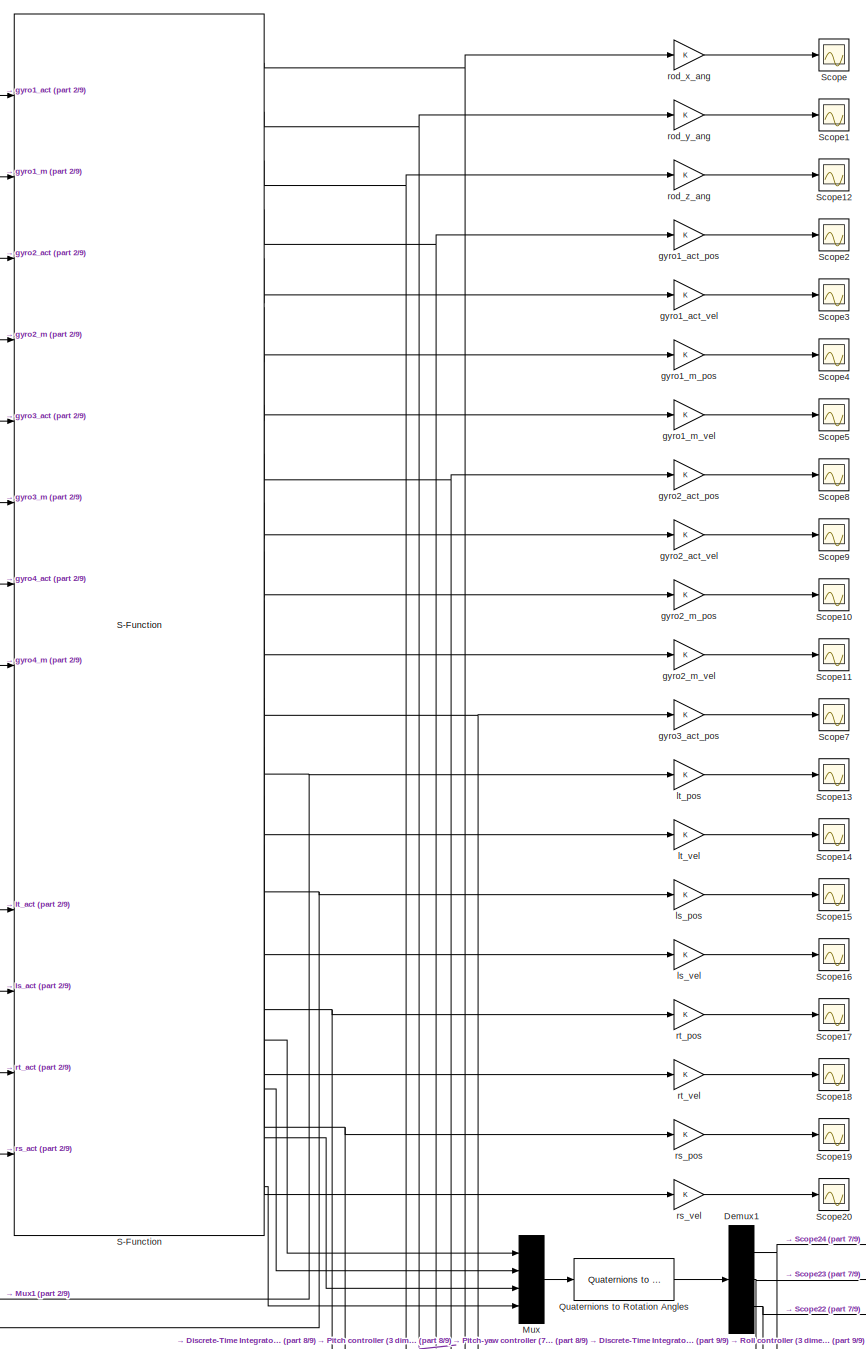
[diagram: root canvas - part 1/9, top right region]
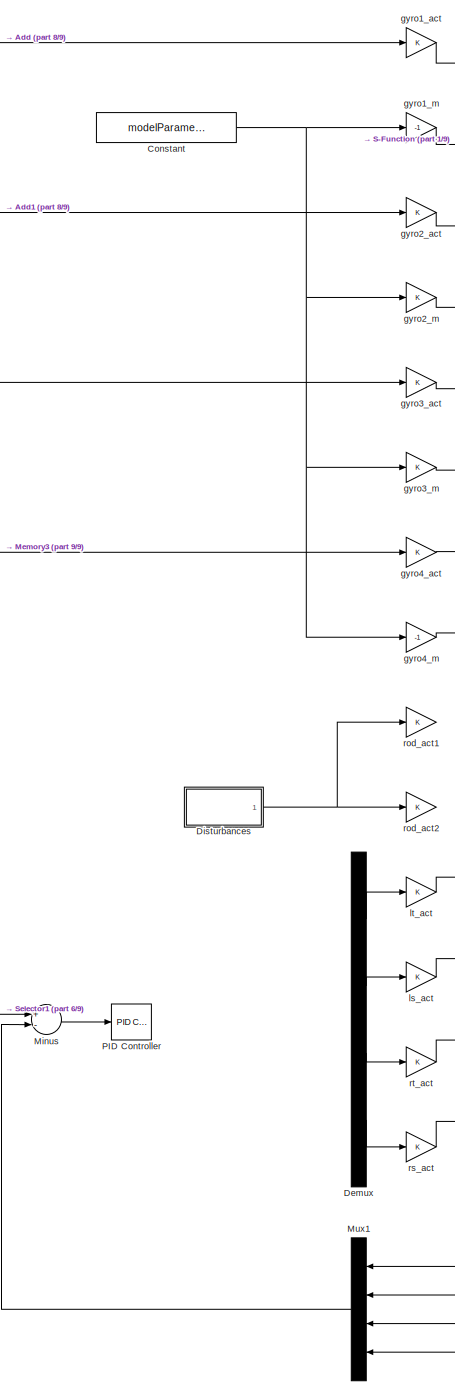
[diagram: root canvas - part 2/9, top right region]
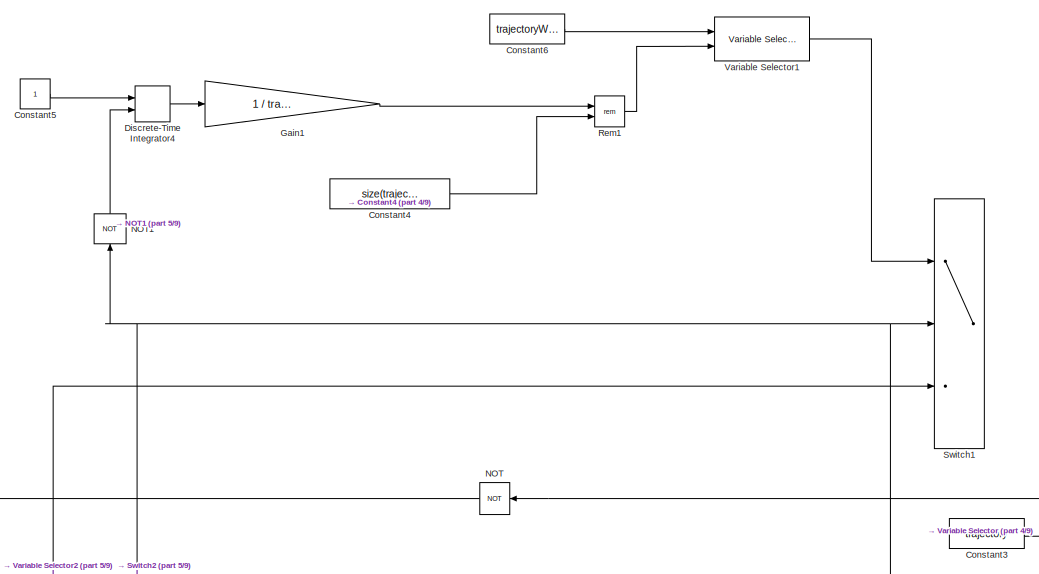
[diagram: root canvas - part 3/9, top left region]
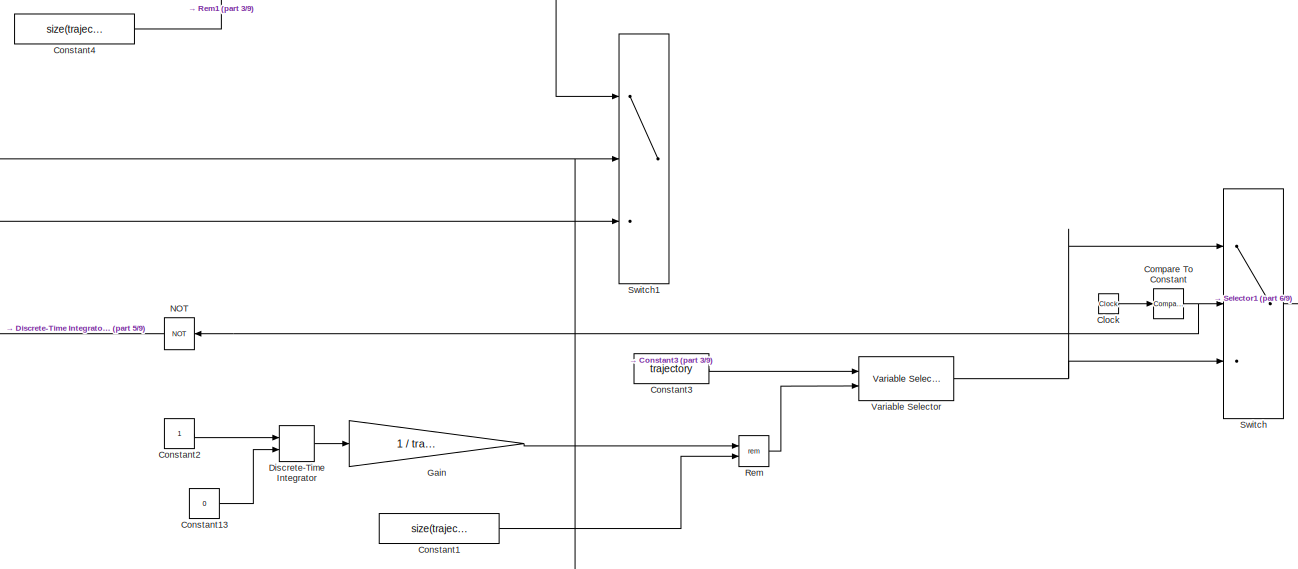
[diagram: root canvas - part 4/9, central region]
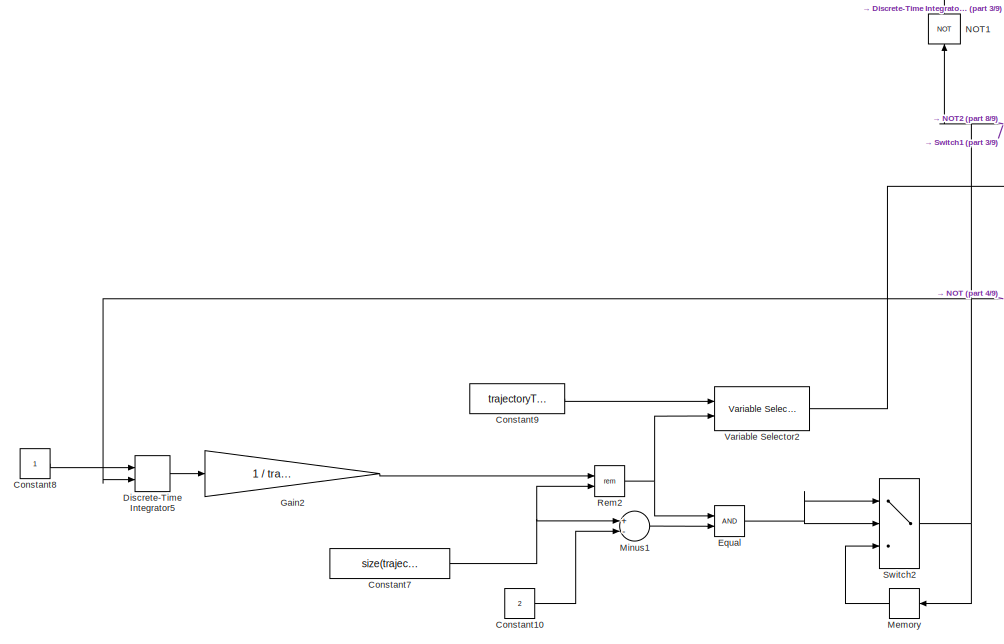
[diagram: root canvas - part 5/9, middle left region]
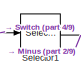
[diagram: root canvas - part 6/9, central region]
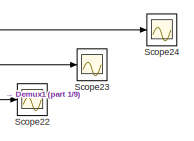
[diagram: root canvas - part 7/9, middle right region]
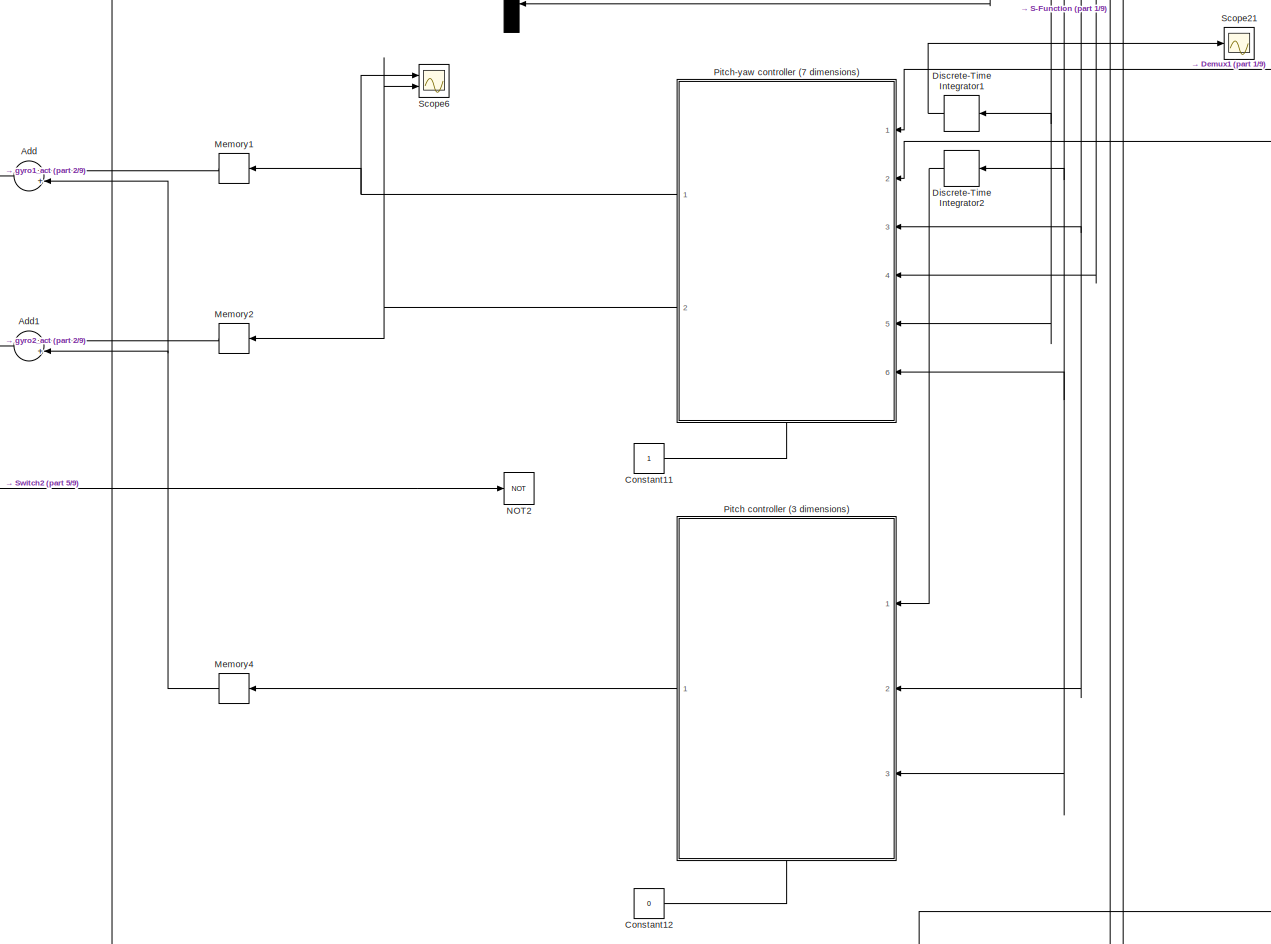
[diagram: root canvas - part 8/9, bottom right region]
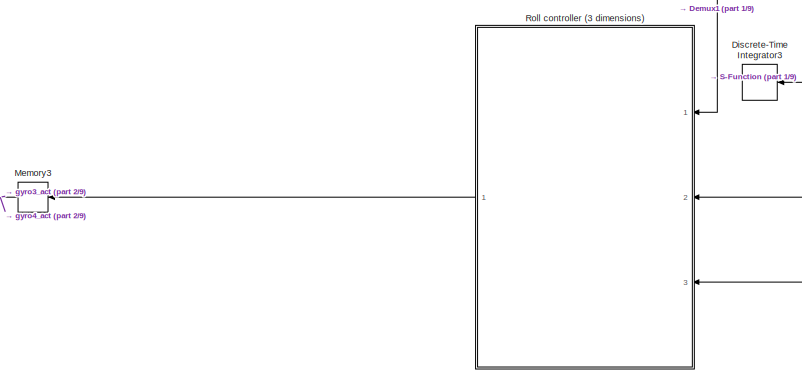
[diagram: root canvas - part 9/9, bottom right region]
MODEL slx_36c080c9a291
KIND model
CONFIG AbsTol = auto
CONFIG EnableMultiTasking = off
CONFIG FixedStep = timeStep
CONFIG MaxStep = auto
CONFIG MinStep = auto
CONFIG RelTol = 1e-3
CONFIG SampleTimeConstraint = Unconstrained
CONFIG Solver = FixedStepDiscrete
CONFIG SolverName = FixedStepDiscrete
CONFIG StartTime = 0.0
CONFIG StopTime = inf
BLOCK [Sum] Add
  InputSameDT = off
  OutDataTypeStr = Inherit: Inherit via internal rule
  Ports = [2, 1]
  SaturateOnIntegerOverflow = off
BLOCK [Sum] Add1
  InputSameDT = off
  OutDataTypeStr = Inherit: Inherit via internal rule
  Ports = [2, 1]
  SaturateOnIntegerOverflow = off
BLOCK [Clock] Clock
BLOCK [Reference] Compare To Constant  REF=simulink/Logic and Bit
Operations/Compare
To Constant
  Ports = [1, 1]
  SourceBlock = simulink/Logic and Bit\nOperations/Compare\nTo Constant
  SourceProductBaseCode = SL
  SourceProductName = Simulink
  SourceType = Compare To Constant
BLOCK [Constant] Constant
  Value = modelParameters.gamD
BLOCK [Constant] Constant1
  Value = size(trajectory, 2)
BLOCK [Constant] Constant10
  Value = 2
BLOCK [Constant] Constant11
BLOCK [Constant] Constant12
  Value = 0
BLOCK [Constant] Constant13
  Value = 0
BLOCK [Constant] Constant2
  SampleTime = trajectoryTimeStep
BLOCK [Constant] Constant3
  Value = trajectory
BLOCK [Constant] Constant4
  Value = size(trajectoryWalk, 2)
BLOCK [Constant] Constant5
  SampleTime = trajectoryTimeStep
BLOCK [Constant] Constant6
  Value = trajectoryWalk
BLOCK [Constant] Constant7
  Value = size(trajectoryToWalk, 2)
BLOCK [Constant] Constant8
  SampleTime = trajectoryTimeStep
BLOCK [Constant] Constant9
  Value = trajectoryToWalk
BLOCK [Demux] Demux
  DisplayOption = bar
  Ports = [1, 4]
BLOCK [Demux] Demux1
  DisplayOption = bar
  Outputs = 3
  Ports = [1, 3]
BLOCK [DiscreteIntegrator] Discrete-Time Integrator
  ExternalReset = level
  ICPrevOutput = DiscIntNeverNeededParam
  ICPrevScaledInput = DiscIntNeverNeededParam
  InitialConditionSetting = Auto
  Ports = [2, 1]
  SampleTime = -1
BLOCK [DiscreteIntegrator] Discrete-Time Integrator1
  ICPrevOutput = DiscIntNeverNeededParam
  ICPrevScaledInput = DiscIntNeverNeededParam
  InitialConditionSetting = Auto
  Ports = [1, 1]
  SampleTime = -1
BLOCK [DiscreteIntegrator] Discrete-Time Integrator2
  ICPrevOutput = DiscIntNeverNeededParam
  ICPrevScaledInput = DiscIntNeverNeededParam
  InitialConditionSetting = Auto
  Ports = [1, 1]
  SampleTime = -1
BLOCK [DiscreteIntegrator] Discrete-Time Integrator3
  ICPrevOutput = DiscIntNeverNeededParam
  ICPrevScaledInput = DiscIntNeverNeededParam
  InitialConditionSetting = Auto
  Ports = [1, 1]
  SampleTime = -1
BLOCK [DiscreteIntegrator] Discrete-Time Integrator4
  ExternalReset = level
  ICPrevOutput = DiscIntNeverNeededParam
  ICPrevScaledInput = DiscIntNeverNeededParam
  InitialConditionSetting = Auto
  Ports = [2, 1]
  SampleTime = -1
BLOCK [DiscreteIntegrator] Discrete-Time Integrator5
  ExternalReset = level
  ICPrevOutput = DiscIntNeverNeededParam
  ICPrevScaledInput = DiscIntNeverNeededParam
  InitialConditionSetting = Auto
  Ports = [2, 1]
  SampleTime = -1
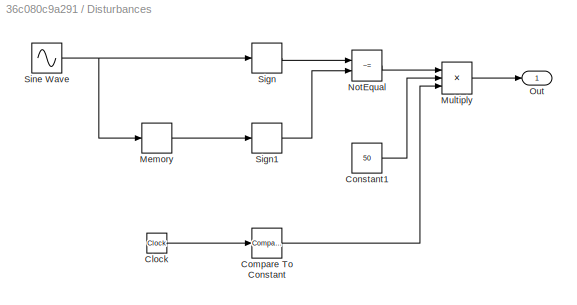
BLOCK [SubSystem] Disturbances
  Ports = [0, 1]
  RequestExecContextInheritance = off
BLOCK [Clock] Disturbances/Clock
BLOCK [Reference] Disturbances/Compare To Constant  REF=simulink/Logic and Bit
Operations/Compare
To Constant
  Ports = [1, 1]
  SourceBlock = simulink/Logic and Bit\nOperations/Compare\nTo Constant
  SourceProductBaseCode = SL
  SourceProductName = Simulink
  SourceType = Compare To Constant
BLOCK [Constant] Disturbances/Constant1
  Value = 50
BLOCK [Memory] Disturbances/Memory
BLOCK [Product] Disturbances/Multiply
  InputSameDT = off
  Inputs = 3
  OutDataTypeStr = Inherit: Inherit via internal rule
  Ports = [3, 1]
  RndMeth = Floor
  SaturateOnIntegerOverflow = off
BLOCK [RelationalOperator] Disturbances/NotEqual
  InputSameDT = off
  Operator = ~=
  OutDataTypeStr = boolean
  Ports = [2, 1]
  RndMeth = Simplest
BLOCK [Outport] Disturbances/Out
  IconDisplay = Port number
BLOCK [Signum] Disturbances/Sign
BLOCK [Signum] Disturbances/Sign1
BLOCK [Sin] Disturbances/Sine Wave
  Frequency = 2
  Phase = -0.5
  Ports = [0, 1]
  SampleTime = 0
BLOCK [RelationalOperator] Equal
  InputSameDT = off
  OutDataTypeStr = boolean
  Ports = [2, 1]
  RndMeth = Simplest
BLOCK [Gain] Gain
  Gain = 1 / trajectoryTimeStep
  OutDataTypeStr = Inherit: Inherit via internal rule
  ParamDataTypeStr = Inherit: Inherit via internal rule
  SaturateOnIntegerOverflow = off
BLOCK [Gain] Gain1
  Gain = 1 / trajectoryTimeStep
  OutDataTypeStr = Inherit: Inherit via internal rule
  ParamDataTypeStr = Inherit: Inherit via internal rule
  SaturateOnIntegerOverflow = off
BLOCK [Gain] Gain2
  Gain = 1 / trajectoryTimeStep
  OutDataTypeStr = Inherit: Inherit via internal rule
  ParamDataTypeStr = Inherit: Inherit via internal rule
  SaturateOnIntegerOverflow = off
BLOCK [Memory] Memory
BLOCK [Memory] Memory1
BLOCK [Memory] Memory2
BLOCK [Memory] Memory3
BLOCK [Memory] Memory4
BLOCK [Sum] Minus
  InputSameDT = off
  Inputs = +-
  OutDataTypeStr = Inherit: Inherit via internal rule
  Ports = [2, 1]
  SaturateOnIntegerOverflow = off
BLOCK [Sum] Minus1
  InputSameDT = off
  Inputs = +-
  OutDataTypeStr = Inherit: Inherit via internal rule
  Ports = [2, 1]
  SaturateOnIntegerOverflow = off
BLOCK [Mux] Mux
  DisplayOption = bar
  Ports = [4, 1]
BLOCK [Mux] Mux1
  DisplayOption = bar
  Ports = [4, 1]
BLOCK [Logic] NOT
  AllPortsSameDT = off
  IconShape = distinctive
  Operator = NOT
  OutDataTypeStr = boolean
  Ports = [1, 1]
BLOCK [Logic] NOT1
  AllPortsSameDT = off
  IconShape = distinctive
  Operator = NOT
  OutDataTypeStr = boolean
  Ports = [1, 1]
BLOCK [Logic] NOT2
  AllPortsSameDT = off
  IconShape = distinctive
  Operator = NOT
  OutDataTypeStr = boolean
  Ports = [1, 1]
BLOCK [Reference] PID Controller  REF=simulink/Continuous/PID Controller
  Ports = [1, 1]
  SourceBlock = simulink/Continuous/PID Controller
  SourceProductBaseCode = SL
  SourceProductName = Simulink
  SourceType = PID 1dof
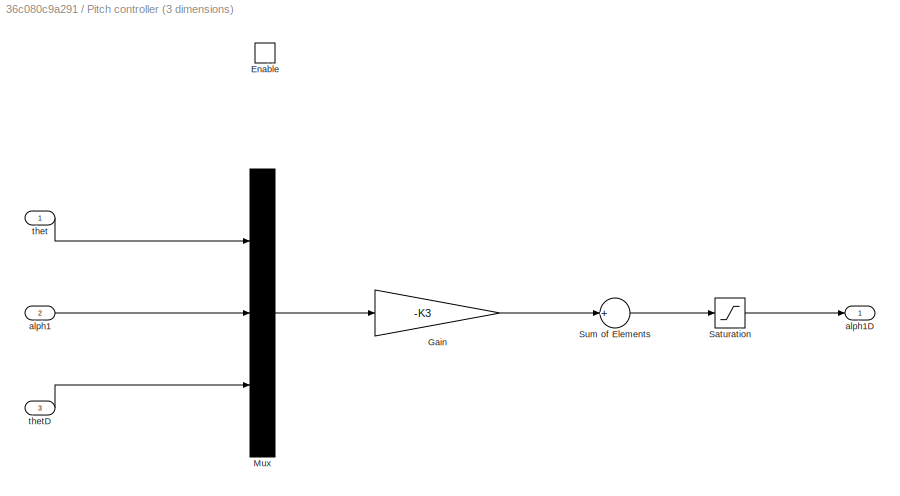
BLOCK [SubSystem] Pitch controller (3 dimensions)
  Ports = [3, 1, 1]
  RequestExecContextInheritance = off
BLOCK [EnablePort] Pitch controller (3 dimensions)/Enable
  Ports = []
  StatesWhenEnabling = reset
BLOCK [Gain] Pitch controller (3 dimensions)/Gain
  Gain = -K3
  OutDataTypeStr = Inherit: Inherit via internal rule
  ParamDataTypeStr = Inherit: Inherit via internal rule
  SaturateOnIntegerOverflow = off
BLOCK [Mux] Pitch controller (3 dimensions)/Mux
  DisplayOption = bar
  Inputs = 3
  Ports = [3, 1]
BLOCK [Saturate] Pitch controller (3 dimensions)/Saturation
  InputPortMap = u0
  LowerLimit = -3
  Ports = [1, 1]
  UpperLimit = 3
BLOCK [Sum] Pitch controller (3 dimensions)/Sum of Elements
  InputSameDT = off
  Inputs = +
  OutDataTypeStr = Inherit: Inherit via internal rule
  Ports = [1, 1]
  SaturateOnIntegerOverflow = off
BLOCK [Inport] Pitch controller (3 dimensions)/alph1
  IconDisplay = Port number
  Port = 2
BLOCK [Outport] Pitch controller (3 dimensions)/alph1D
  IconDisplay = Port number
BLOCK [Inport] Pitch controller (3 dimensions)/thet
  IconDisplay = Port number
BLOCK [Inport] Pitch controller (3 dimensions)/thetD
  IconDisplay = Port number
  Port = 3
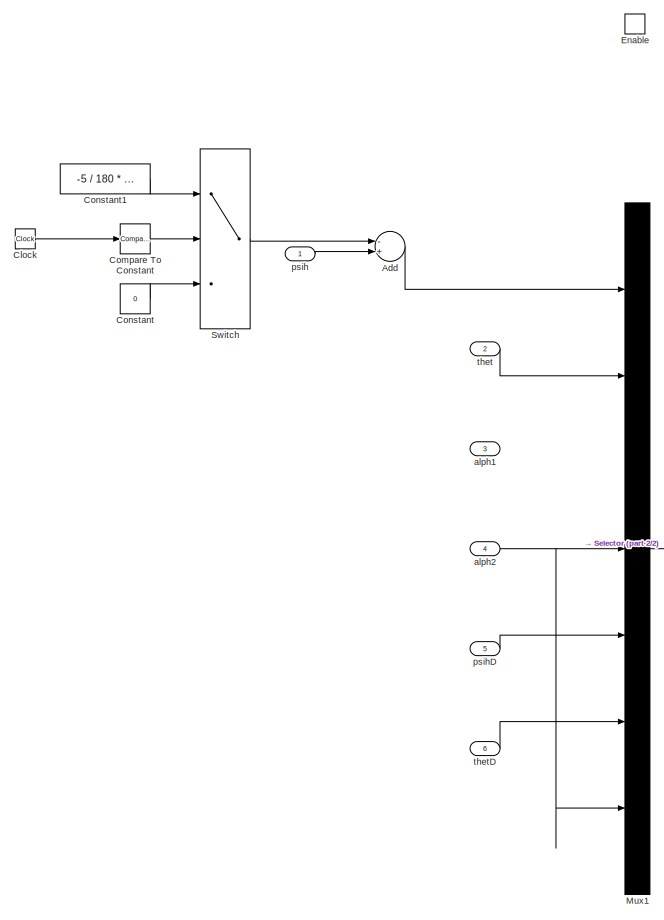
[diagram: Pitch-yaw controller (7 dimensions) - part 1/2, left side, full height]
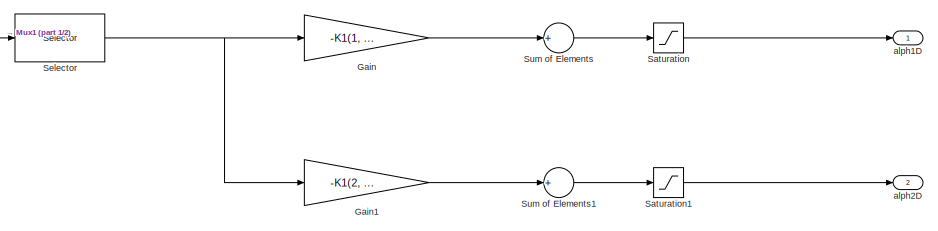
[diagram: Pitch-yaw controller (7 dimensions) - part 2/2, bottom right region]
BLOCK [SubSystem] Pitch-yaw controller (7 dimensions)
  Ports = [6, 2, 1]
  RequestExecContextInheritance = off
BLOCK [Sum] Pitch-yaw controller (7 dimensions)/Add
  InputSameDT = off
  Inputs = -+
  OutDataTypeStr = Inherit: Inherit via internal rule
  Ports = [2, 1]
  SaturateOnIntegerOverflow = off
BLOCK [Clock] Pitch-yaw controller (7 dimensions)/Clock
BLOCK [Reference] Pitch-yaw controller (7 dimensions)/Compare To Constant  REF=simulink/Logic and Bit
Operations/Compare
To Constant
  Ports = [1, 1]
  SourceBlock = simulink/Logic and Bit\nOperations/Compare\nTo Constant
  SourceProductBaseCode = SL
  SourceProductName = Simulink
  SourceType = Compare To Constant
BLOCK [Constant] Pitch-yaw controller (7 dimensions)/Constant
  Value = 0
BLOCK [Constant] Pitch-yaw controller (7 dimensions)/Constant1
  Value = -5 / 180 * pi
BLOCK [EnablePort] Pitch-yaw controller (7 dimensions)/Enable
  Ports = []
  StatesWhenEnabling = reset
BLOCK [Gain] Pitch-yaw controller (7 dimensions)/Gain
  Gain = -K1(1, :)
  OutDataTypeStr = Inherit: Inherit via internal rule
  ParamDataTypeStr = Inherit: Inherit via internal rule
  SaturateOnIntegerOverflow = off
BLOCK [Gain] Pitch-yaw controller (7 dimensions)/Gain1
  Gain = -K1(2, :)
  OutDataTypeStr = Inherit: Inherit via internal rule
  ParamDataTypeStr = Inherit: Inherit via internal rule
  SaturateOnIntegerOverflow = off
BLOCK [Mux] Pitch-yaw controller (7 dimensions)/Mux1
  DisplayOption = bar
  Inputs = 7
  Ports = [7, 1]
BLOCK [Saturate] Pitch-yaw controller (7 dimensions)/Saturation
  InputPortMap = u0
  LowerLimit = -3
  Ports = [1, 1]
  UpperLimit = 3
BLOCK [Saturate] Pitch-yaw controller (7 dimensions)/Saturation1
  InputPortMap = u0
  LowerLimit = -3
  Ports = [1, 1]
  UpperLimit = 3
BLOCK [Selector] Pitch-yaw controller (7 dimensions)/Selector
  IndexOptions = Index vector (dialog),Index vector (dialog)
  Indices = 1,[1 2 4 5 6 7]
  InputPortWidth = 7
  NumberOfDimensions = 2
  OutputSizes = 1,1
  Ports = [1, 1]
BLOCK [Sum] Pitch-yaw controller (7 dimensions)/Sum of Elements
  InputSameDT = off
  Inputs = +
  OutDataTypeStr = Inherit: Inherit via internal rule
  Ports = [1, 1]
  SaturateOnIntegerOverflow = off
BLOCK [Sum] Pitch-yaw controller (7 dimensions)/Sum of Elements1
  InputSameDT = off
  Inputs = +
  OutDataTypeStr = Inherit: Inherit via internal rule
  Ports = [1, 1]
  SaturateOnIntegerOverflow = off
BLOCK [Switch] Pitch-yaw controller (7 dimensions)/Switch
  Criteria = u2 > Threshold
  InputSameDT = off
  SaturateOnIntegerOverflow = off
BLOCK [Inport] Pitch-yaw controller (7 dimensions)/alph1
  IconDisplay = Port number
  Port = 3
BLOCK [Outport] Pitch-yaw controller (7 dimensions)/alph1D
  IconDisplay = Port number
BLOCK [Inport] Pitch-yaw controller (7 dimensions)/alph2
  IconDisplay = Port number
  Port = 4
BLOCK [Outport] Pitch-yaw controller (7 dimensions)/alph2D
  IconDisplay = Port number
  Port = 2
BLOCK [Inport] Pitch-yaw controller (7 dimensions)/psih
  IconDisplay = Port number
BLOCK [Inport] Pitch-yaw controller (7 dimensions)/psihD
  IconDisplay = Port number
  Port = 5
BLOCK [Inport] Pitch-yaw controller (7 dimensions)/thet
  IconDisplay = Port number
  Port = 2
BLOCK [Inport] Pitch-yaw controller (7 dimensions)/thetD
  IconDisplay = Port number
  Port = 6
BLOCK [Reference] Quaternions to Rotation Angles  REF=sharedtransform/Quaternions to Rotation Angles
  AttributesFormatString = Rotation Order: %<rotationOrder>
  Ports = [1, 1]
  SourceBlock = sharedtransform/Quaternions to Rotation Angles
  SourceProductBaseCode = AE
  SourceProductName = Aerospace Blockset
  SourceType = Quat2Ang
BLOCK [Math] Rem
  Operator = rem
  Ports = [2, 1]
BLOCK [Math] Rem1
  Operator = rem
  Ports = [2, 1]
BLOCK [Math] Rem2
  Operator = rem
  Ports = [2, 1]
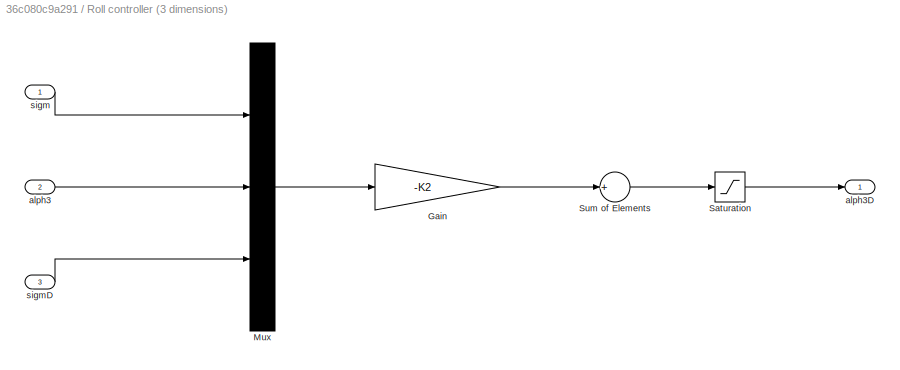
BLOCK [SubSystem] Roll controller (3 dimensions)
  Ports = [3, 1]
  RequestExecContextInheritance = off
BLOCK [Gain] Roll controller (3 dimensions)/Gain
  Gain = -K2
  OutDataTypeStr = Inherit: Inherit via internal rule
  ParamDataTypeStr = Inherit: Inherit via internal rule
  SaturateOnIntegerOverflow = off
BLOCK [Mux] Roll controller (3 dimensions)/Mux
  DisplayOption = bar
  Inputs = 3
  Ports = [3, 1]
BLOCK [Saturate] Roll controller (3 dimensions)/Saturation
  InputPortMap = u0
  LowerLimit = -3
  Ports = [1, 1]
  UpperLimit = 3
BLOCK [Sum] Roll controller (3 dimensions)/Sum of Elements
  InputSameDT = off
  Inputs = +
  OutDataTypeStr = Inherit: Inherit via internal rule
  Ports = [1, 1]
  SaturateOnIntegerOverflow = off
BLOCK [Inport] Roll controller (3 dimensions)/alph3
  IconDisplay = Port number
  Port = 2
BLOCK [Outport] Roll controller (3 dimensions)/alph3D
  IconDisplay = Port number
BLOCK [Inport] Roll controller (3 dimensions)/sigm
  IconDisplay = Port number
BLOCK [Inport] Roll controller (3 dimensions)/sigmD
  IconDisplay = Port number
  Port = 3
BLOCK [S-Function] S-Function
  EnableBusSupport = off
  FunctionName = MuJoCo
  Ports = [14, 24]
  SFcnIsStateOwnerBlock = off
  SFunctionDeploymentMode = off
BLOCK [Scope] Scope
  Floating = off
  NumInputPorts = 1
  Ports = [1]
  ScopeSpecificationString = Simulink.scopes.TimeScopeBlockCfg('CurrentConfiguration', extmgr.ConfigurationSet(extmgr.Configuration('Core','General UI',true),extmgr.Configuration('Core','Source UI',true),extmgr.Configuration('Sources','WiredSimulink',true),extmgr.Configuration('Visuals','Time Domain',true,'SerializedDisplays',{struct('MinYLimReal','-0.05455','MaxYLimReal','0.04875','YLabelReal','','MinYLimMag','0.00000','MaxY...<+1669ch>
BLOCK [Scope] Scope1
  Floating = off
  NumInputPorts = 1
  Ports = [1]
  ScopeSpecificationString = Simulink.scopes.TimeScopeBlockCfg('CurrentConfiguration', extmgr.ConfigurationSet(extmgr.Configuration('Core','General UI',true),extmgr.Configuration('Core','Source UI',true),extmgr.Configuration('Sources','WiredSimulink',true,'DataLoggingVariableName','ScopeData1'),extmgr.Configuration('Visuals','Time Domain',true,'SerializedDisplays',{struct('MinYLimReal','-7.0362','MaxYLimReal','1.09617','YLabe...<+1417ch>
BLOCK [Scope] Scope10
  Floating = off
  NumInputPorts = 1
  Ports = [1]
  ScopeSpecificationString = Simulink.scopes.TimeScopeBlockCfg('CurrentConfiguration', extmgr.ConfigurationSet(extmgr.Configuration('Core','General UI',true),extmgr.Configuration('Core','Source UI',true),extmgr.Configuration('Sources','WiredSimulink',true,'DataLoggingVariableName','ScopeData1'),extmgr.Configuration('Visuals','Time Domain',true,'SerializedDisplays',{struct('MinYLimReal','-640.0995','MaxYLimReal','5760.89553','...<+1410ch>
BLOCK [Scope] Scope11
  Floating = off
  NumInputPorts = 1
  Ports = [1]
  ScopeSpecificationString = Simulink.scopes.TimeScopeBlockCfg('CurrentConfiguration', extmgr.ConfigurationSet(extmgr.Configuration('Core','General UI',true),extmgr.Configuration('Core','Source UI',true),extmgr.Configuration('Sources','WiredSimulink',true,'DataLoggingVariableName','ScopeData2'),extmgr.Configuration('Visuals','Time Domain',true,'SerializedDisplays',{struct('MinYLimReal','-131.02873','MaxYLimReal','1179.25854',...<+1388ch>
BLOCK [Scope] Scope12
  Floating = off
  NumInputPorts = 1
  Ports = [1]
  ScopeSpecificationString = Simulink.scopes.TimeScopeBlockCfg('CurrentConfiguration', extmgr.ConfigurationSet(extmgr.Configuration('Core','General UI',true),extmgr.Configuration('Core','Source UI',true),extmgr.Configuration('Sources','WiredSimulink',true,'DataLoggingVariableName','ScopeData5'),extmgr.Configuration('Visuals','Time Domain',true,'SerializedDisplays',{struct('MinYLimReal','-0.05405','MaxYLimReal','0.47776','YLab...<+1762ch>
BLOCK [Scope] Scope13
  Floating = off
  NumInputPorts = 1
  Ports = [1]
  ScopeSpecificationString = Simulink.scopes.TimeScopeBlockCfg('CurrentConfiguration', extmgr.ConfigurationSet(extmgr.Configuration('Core','General UI',true),extmgr.Configuration('Core','Source UI',true),extmgr.Configuration('Sources','WiredSimulink',true,'DataLoggingVariableName','ScopeData2'),extmgr.Configuration('Visuals','Time Domain',true,'SerializedDisplays',{struct('MinYLimReal','-131.02873','MaxYLimReal','1179.25854',...<+1388ch>
BLOCK [Scope] Scope14
  Floating = off
  NumInputPorts = 1
  Ports = [1]
  ScopeSpecificationString = Simulink.scopes.TimeScopeBlockCfg('CurrentConfiguration', extmgr.ConfigurationSet(extmgr.Configuration('Core','General UI',true),extmgr.Configuration('Core','Source UI',true),extmgr.Configuration('Sources','WiredSimulink',true,'DataLoggingVariableName','ScopeData3'),extmgr.Configuration('Visuals','Time Domain',true,'SerializedDisplays',{struct('MinYLimReal','-131.02873','MaxYLimReal','1179.25854',...<+1388ch>
BLOCK [Scope] Scope15
  Floating = off
  NumInputPorts = 1
  Ports = [1]
  ScopeSpecificationString = Simulink.scopes.TimeScopeBlockCfg('CurrentConfiguration', extmgr.ConfigurationSet(extmgr.Configuration('Core','General UI',true),extmgr.Configuration('Core','Source UI',true),extmgr.Configuration('Sources','WiredSimulink',true,'DataLoggingVariableName','ScopeData4'),extmgr.Configuration('Visuals','Time Domain',true,'SerializedDisplays',{struct('MinYLimReal','-131.02873','MaxYLimReal','1179.25854',...<+1388ch>
BLOCK [Scope] Scope16
  Floating = off
  NumInputPorts = 1
  Ports = [1]
  ScopeSpecificationString = Simulink.scopes.TimeScopeBlockCfg('CurrentConfiguration', extmgr.ConfigurationSet(extmgr.Configuration('Core','General UI',true),extmgr.Configuration('Core','Source UI',true),extmgr.Configuration('Sources','WiredSimulink',true,'DataLoggingVariableName','ScopeData5'),extmgr.Configuration('Visuals','Time Domain',true,'SerializedDisplays',{struct('MinYLimReal','-131.02873','MaxYLimReal','1179.25854',...<+1388ch>
BLOCK [Scope] Scope17
  Floating = off
  NumInputPorts = 1
  Ports = [1]
  ScopeSpecificationString = Simulink.scopes.TimeScopeBlockCfg('CurrentConfiguration', extmgr.ConfigurationSet(extmgr.Configuration('Core','General UI',true),extmgr.Configuration('Core','Source UI',true),extmgr.Configuration('Sources','WiredSimulink',true,'DataLoggingVariableName','ScopeData6'),extmgr.Configuration('Visuals','Time Domain',true,'SerializedDisplays',{struct('MinYLimReal','-131.02873','MaxYLimReal','1179.25854',...<+1388ch>
BLOCK [Scope] Scope18
  Floating = off
  NumInputPorts = 1
  Ports = [1]
  ScopeSpecificationString = Simulink.scopes.TimeScopeBlockCfg('CurrentConfiguration', extmgr.ConfigurationSet(extmgr.Configuration('Core','General UI',true),extmgr.Configuration('Core','Source UI',true),extmgr.Configuration('Sources','WiredSimulink',true,'DataLoggingVariableName','ScopeData7'),extmgr.Configuration('Visuals','Time Domain',true,'SerializedDisplays',{struct('MinYLimReal','-131.02873','MaxYLimReal','1179.25854',...<+1388ch>
BLOCK [Scope] Scope19
  Floating = off
  NumInputPorts = 1
  Ports = [1]
  ScopeSpecificationString = Simulink.scopes.TimeScopeBlockCfg('CurrentConfiguration', extmgr.ConfigurationSet(extmgr.Configuration('Core','General UI',true),extmgr.Configuration('Core','Source UI',true),extmgr.Configuration('Sources','WiredSimulink',true,'DataLoggingVariableName','ScopeData8'),extmgr.Configuration('Visuals','Time Domain',true,'SerializedDisplays',{struct('MinYLimReal','-131.02873','MaxYLimReal','1179.25854',...<+1388ch>
BLOCK [Scope] Scope2
  Floating = off
  NumInputPorts = 1
  Ports = [1]
  ScopeSpecificationString = Simulink.scopes.TimeScopeBlockCfg('CurrentConfiguration', extmgr.ConfigurationSet(extmgr.Configuration('Core','General UI',true),extmgr.Configuration('Core','Source UI',true),extmgr.Configuration('Sources','WiredSimulink',true,'DataLoggingVariableName','ScopeData2'),extmgr.Configuration('Visuals','Time Domain',true,'SerializedDisplays',{struct('MinYLimReal','-0.01837','MaxYLimReal','0.03145','YLab...<+1425ch>
BLOCK [Scope] Scope20
  Floating = off
  NumInputPorts = 1
  Ports = [1]
  ScopeSpecificationString = Simulink.scopes.TimeScopeBlockCfg('CurrentConfiguration', extmgr.ConfigurationSet(extmgr.Configuration('Core','General UI',true),extmgr.Configuration('Core','Source UI',true),extmgr.Configuration('Sources','WiredSimulink',true,'DataLoggingVariableName','ScopeData9'),extmgr.Configuration('Visuals','Time Domain',true,'SerializedDisplays',{struct('MinYLimReal','-131.02873','MaxYLimReal','1179.25854',...<+1388ch>
BLOCK [Scope] Scope21
  Floating = off
  NumInputPorts = 1
  Ports = [1]
  ScopeSpecificationString = Simulink.scopes.TimeScopeBlockCfg('CurrentConfiguration', extmgr.ConfigurationSet(extmgr.Configuration('Core','General UI',true),extmgr.Configuration('Core','Source UI',true),extmgr.Configuration('Sources','WiredSimulink',true,'DataLoggingVariableName','ScopeData1'),extmgr.Configuration('Visuals','Time Domain',true,'SerializedDisplays',{struct('MinYLimReal','-0.0000000000005','MaxYLimReal','0.0000...<+1520ch>
BLOCK [Scope] Scope22
  Floating = off
  NumInputPorts = 1
  Ports = [1]
  ScopeSpecificationString = Simulink.scopes.TimeScopeBlockCfg('CurrentConfiguration', extmgr.ConfigurationSet(extmgr.Configuration('Core','General UI',true),extmgr.Configuration('Core','Source UI',true),extmgr.Configuration('Sources','WiredSimulink',true,'DataLoggingVariableName','ScopeData1'),extmgr.Configuration('Visuals','Time Domain',true,'SerializedDisplays',{struct('MinYLimReal','-0.01982','MaxYLimReal','0.14602','YLab...<+1392ch>
BLOCK [Scope] Scope23
  Floating = off
  NumInputPorts = 1
  Ports = [1]
  ScopeSpecificationString = Simulink.scopes.TimeScopeBlockCfg('CurrentConfiguration', extmgr.ConfigurationSet(extmgr.Configuration('Core','General UI',true),extmgr.Configuration('Core','Source UI',true),extmgr.Configuration('Sources','WiredSimulink',true,'DataLoggingVariableName','ScopeData2'),extmgr.Configuration('Visuals','Time Domain',true),extmgr.Configuration('Tools','Plot Navigation',true),extmgr.Configuration('Tools',...<+40ch>
BLOCK [Scope] Scope24
  Floating = off
  NumInputPorts = 1
  Ports = [1]
  ScopeSpecificationString = Simulink.scopes.TimeScopeBlockCfg('CurrentConfiguration', extmgr.ConfigurationSet(extmgr.Configuration('Core','General UI',true),extmgr.Configuration('Core','Source UI',true),extmgr.Configuration('Sources','WiredSimulink',true,'DataLoggingVariableName','ScopeData3'),extmgr.Configuration('Visuals','Time Domain',true),extmgr.Configuration('Tools','Plot Navigation',true),extmgr.Configuration('Tools',...<+40ch>
BLOCK [Scope] Scope3
  Floating = off
  NumInputPorts = 1
  Ports = [1]
  ScopeSpecificationString = Simulink.scopes.TimeScopeBlockCfg('CurrentConfiguration', extmgr.ConfigurationSet(extmgr.Configuration('Core','General UI',true),extmgr.Configuration('Core','Source UI',true),extmgr.Configuration('Sources','WiredSimulink',true,'DataLoggingVariableName','ScopeData3'),extmgr.Configuration('Visuals','Time Domain',true,'SerializedDisplays',{struct('MinYLimReal','-0.83058','MaxYLimReal','1.49325','YLab...<+1425ch>
BLOCK [Scope] Scope4
  Floating = off
  NumInputPorts = 1
  Ports = [1]
  ScopeSpecificationString = Simulink.scopes.TimeScopeBlockCfg('CurrentConfiguration', extmgr.ConfigurationSet(extmgr.Configuration('Core','General UI',true),extmgr.Configuration('Core','Source UI',true),extmgr.Configuration('Sources','WiredSimulink',true,'DataLoggingVariableName','ScopeData4'),extmgr.Configuration('Visuals','Time Domain',true,'SerializedDisplays',{struct('MinYLimReal','-11778.61634','MaxYLimReal','1308.73515...<+1423ch>
BLOCK [Scope] Scope5
  Floating = off
  NumInputPorts = 1
  Ports = [1]
  ScopeSpecificationString = Simulink.scopes.TimeScopeBlockCfg('CurrentConfiguration', extmgr.ConfigurationSet(extmgr.Configuration('Core','General UI',true),extmgr.Configuration('Core','Source UI',true),extmgr.Configuration('Sources','WiredSimulink',true,'DataLoggingVariableName','ScopeData5'),extmgr.Configuration('Visuals','Time Domain',true,'SerializedDisplays',{struct('MinYLimReal','-1179.25819','MaxYLimReal','131.02869',...<+1390ch>
BLOCK [Scope] Scope6
  Floating = off
  NumInputPorts = 2
  Ports = [2]
  ScopeSpecificationString = Simulink.scopes.TimeScopeBlockCfg('CurrentConfiguration', extmgr.ConfigurationSet(extmgr.Configuration('Core','General UI',true),extmgr.Configuration('Core','Source UI',true),extmgr.Configuration('Sources','WiredSimulink',true,'DataLoggingVariableName','ScopeData1'),extmgr.Configuration('Visuals','Time Domain',true,'SerializedDisplays',{struct('MinYLimReal','0.000014','MaxYLimReal','0.000024','YLa...<+1514ch>
BLOCK [Scope] Scope7
  Floating = off
  NumInputPorts = 1
  Ports = [1]
  ScopeSpecificationString = Simulink.scopes.TimeScopeBlockCfg('CurrentConfiguration', extmgr.ConfigurationSet(extmgr.Configuration('Core','General UI',true),extmgr.Configuration('Core','Source UI',true),extmgr.Configuration('Sources','WiredSimulink',true,'DataLoggingVariableName','ScopeData1'),extmgr.Configuration('Visuals','Time Domain',true,'SerializedDisplays',{struct('MinYLimReal','-131.02873','MaxYLimReal','1179.25854',...<+1388ch>
BLOCK [Scope] Scope8
  Floating = off
  NumInputPorts = 1
  Ports = [1]
  ScopeSpecificationString = Simulink.scopes.TimeScopeBlockCfg('CurrentConfiguration', extmgr.ConfigurationSet(extmgr.Configuration('Core','General UI',true),extmgr.Configuration('Core','Source UI',true),extmgr.Configuration('Sources','WiredSimulink',true,'DataLoggingVariableName','ScopeData3'),extmgr.Configuration('Visuals','Time Domain',true,'SerializedDisplays',{struct('MinYLimReal','-0.02112','MaxYLimReal','0.03675','YLab...<+1425ch>
BLOCK [Scope] Scope9
  Floating = off
  NumInputPorts = 1
  Ports = [1]
  ScopeSpecificationString = Simulink.scopes.TimeScopeBlockCfg('CurrentConfiguration', extmgr.ConfigurationSet(extmgr.Configuration('Core','General UI',true),extmgr.Configuration('Core','Source UI',true),extmgr.Configuration('Sources','WiredSimulink',true,'DataLoggingVariableName','ScopeData4'),extmgr.Configuration('Visuals','Time Domain',true,'SerializedDisplays',{struct('MinYLimReal','-3.50607','MaxYLimReal','0.41731','YLab...<+1401ch>
BLOCK [Selector] Selector1
  IndexOptions = Index vector (dialog)
  Indices = [3 4 1 2]
  InputPortWidth = 4
  OutputSizes = 1
  Ports = [1, 1]
BLOCK [Switch] Switch
  Criteria = u2 > Threshold
  InputSameDT = off
  SaturateOnIntegerOverflow = off
BLOCK [Switch] Switch1
  Criteria = u2 > Threshold
  InputSameDT = off
  SaturateOnIntegerOverflow = off
BLOCK [Switch] Switch2
  Criteria = u2 > Threshold
  InputSameDT = off
  SaturateOnIntegerOverflow = off
BLOCK [Reference] Variable Selector  REF=dspindex/Variable
Selector
  Ports = [2, 1]
  SourceBlock = dspindex/Variable\nSelector
  SourceProductBaseCode = DS
  SourceProductName = DSP System Toolbox
  SourceType = Variable Selector
BLOCK [Reference] Variable Selector1  REF=dspindex/Variable
Selector
  Ports = [2, 1]
  SourceBlock = dspindex/Variable\nSelector
  SourceProductBaseCode = DS
  SourceProductName = DSP System Toolbox
  SourceType = Variable Selector
BLOCK [Reference] Variable Selector2  REF=dspindex/Variable
Selector
  Ports = [2, 1]
  SourceBlock = dspindex/Variable\nSelector
  SourceProductBaseCode = DS
  SourceProductName = DSP System Toolbox
  SourceType = Variable Selector
BLOCK [Gain] gyro1_act
  OutDataTypeStr = Inherit: Inherit via internal rule
  ParamDataTypeStr = Inherit: Inherit via internal rule
  SaturateOnIntegerOverflow = off
BLOCK [Gain] gyro1_act_pos
  OutDataTypeStr = Inherit: Inherit via internal rule
  ParamDataTypeStr = Inherit: Inherit via internal rule
  SaturateOnIntegerOverflow = off
BLOCK [Gain] gyro1_act_vel
  OutDataTypeStr = Inherit: Inherit via internal rule
  ParamDataTypeStr = Inherit: Inherit via internal rule
  SaturateOnIntegerOverflow = off
BLOCK [Gain] gyro1_m
  Gain = -1
  OutDataTypeStr = Inherit: Inherit via internal rule
  ParamDataTypeStr = Inherit: Inherit via internal rule
  SaturateOnIntegerOverflow = off
BLOCK [Gain] gyro1_m_pos
  OutDataTypeStr = Inherit: Inherit via internal rule
  ParamDataTypeStr = Inherit: Inherit via internal rule
  SaturateOnIntegerOverflow = off
BLOCK [Gain] gyro1_m_vel
  OutDataTypeStr = Inherit: Inherit via internal rule
  ParamDataTypeStr = Inherit: Inherit via internal rule
  SaturateOnIntegerOverflow = off
BLOCK [Gain] gyro2_act
  OutDataTypeStr = Inherit: Inherit via internal rule
  ParamDataTypeStr = Inherit: Inherit via internal rule
  SaturateOnIntegerOverflow = off
BLOCK [Gain] gyro2_act_pos
  OutDataTypeStr = Inherit: Inherit via internal rule
  ParamDataTypeStr = Inherit: Inherit via internal rule
  SaturateOnIntegerOverflow = off
BLOCK [Gain] gyro2_act_vel
  OutDataTypeStr = Inherit: Inherit via internal rule
  ParamDataTypeStr = Inherit: Inherit via internal rule
  SaturateOnIntegerOverflow = off
BLOCK [Gain] gyro2_m
  OutDataTypeStr = Inherit: Inherit via internal rule
  ParamDataTypeStr = Inherit: Inherit via internal rule
  SaturateOnIntegerOverflow = off
BLOCK [Gain] gyro2_m_pos
  OutDataTypeStr = Inherit: Inherit via internal rule
  ParamDataTypeStr = Inherit: Inherit via internal rule
  SaturateOnIntegerOverflow = off
BLOCK [Gain] gyro2_m_vel
  OutDataTypeStr = Inherit: Inherit via internal rule
  ParamDataTypeStr = Inherit: Inherit via internal rule
  SaturateOnIntegerOverflow = off
BLOCK [Gain] gyro3_act
  OutDataTypeStr = Inherit: Inherit via internal rule
  ParamDataTypeStr = Inherit: Inherit via internal rule
  SaturateOnIntegerOverflow = off
BLOCK [Gain] gyro3_act_pos
  OutDataTypeStr = Inherit: Inherit via internal rule
  ParamDataTypeStr = Inherit: Inherit via internal rule
  SaturateOnIntegerOverflow = off
BLOCK [Gain] gyro3_m
  OutDataTypeStr = Inherit: Inherit via internal rule
  ParamDataTypeStr = Inherit: Inherit via internal rule
  SaturateOnIntegerOverflow = off
BLOCK [Gain] gyro4_act
  OutDataTypeStr = Inherit: Inherit via internal rule
  ParamDataTypeStr = Inherit: Inherit via internal rule
  SaturateOnIntegerOverflow = off
BLOCK [Gain] gyro4_m
  Gain = -1
  OutDataTypeStr = Inherit: Inherit via internal rule
  ParamDataTypeStr = Inherit: Inherit via internal rule
  SaturateOnIntegerOverflow = off
BLOCK [Gain] ls_act
  OutDataTypeStr = Inherit: Inherit via internal rule
  ParamDataTypeStr = Inherit: Inherit via internal rule
  SaturateOnIntegerOverflow = off
BLOCK [Gain] ls_pos
  OutDataTypeStr = Inherit: Inherit via internal rule
  ParamDataTypeStr = Inherit: Inherit via internal rule
  SaturateOnIntegerOverflow = off
BLOCK [Gain] ls_vel
  OutDataTypeStr = Inherit: Inherit via internal rule
  ParamDataTypeStr = Inherit: Inherit via internal rule
  SaturateOnIntegerOverflow = off
BLOCK [Gain] lt_act
  OutDataTypeStr = Inherit: Inherit via internal rule
  ParamDataTypeStr = Inherit: Inherit via internal rule
  SaturateOnIntegerOverflow = off
BLOCK [Gain] lt_pos
  OutDataTypeStr = Inherit: Inherit via internal rule
  ParamDataTypeStr = Inherit: Inherit via internal rule
  SaturateOnIntegerOverflow = off
BLOCK [Gain] lt_vel
  OutDataTypeStr = Inherit: Inherit via internal rule
  ParamDataTypeStr = Inherit: Inherit via internal rule
  SaturateOnIntegerOverflow = off
BLOCK [Gain] rod_act1
  OutDataTypeStr = Inherit: Inherit via internal rule
  ParamDataTypeStr = Inherit: Inherit via internal rule
  SaturateOnIntegerOverflow = off
BLOCK [Gain] rod_act2
  OutDataTypeStr = Inherit: Inherit via internal rule
  ParamDataTypeStr = Inherit: Inherit via internal rule
  SaturateOnIntegerOverflow = off
BLOCK [Gain] rod_x_ang
  OutDataTypeStr = Inherit: Inherit via internal rule
  ParamDataTypeStr = Inherit: Inherit via internal rule
  SaturateOnIntegerOverflow = off
BLOCK [Gain] rod_y_ang
  OutDataTypeStr = Inherit: Inherit via internal rule
  ParamDataTypeStr = Inherit: Inherit via internal rule
  SaturateOnIntegerOverflow = off
BLOCK [Gain] rod_z_ang
  OutDataTypeStr = Inherit: Inherit via internal rule
  ParamDataTypeStr = Inherit: Inherit via internal rule
  SaturateOnIntegerOverflow = off
BLOCK [Gain] rs_act
  OutDataTypeStr = Inherit: Inherit via internal rule
  ParamDataTypeStr = Inherit: Inherit via internal rule
  SaturateOnIntegerOverflow = off
BLOCK [Gain] rs_pos
  OutDataTypeStr = Inherit: Inherit via internal rule
  ParamDataTypeStr = Inherit: Inherit via internal rule
  SaturateOnIntegerOverflow = off
BLOCK [Gain] rs_vel
  OutDataTypeStr = Inherit: Inherit via internal rule
  ParamDataTypeStr = Inherit: Inherit via internal rule
  SaturateOnIntegerOverflow = off
BLOCK [Gain] rt_act
  OutDataTypeStr = Inherit: Inherit via internal rule
  ParamDataTypeStr = Inherit: Inherit via internal rule
  SaturateOnIntegerOverflow = off
BLOCK [Gain] rt_pos
  OutDataTypeStr = Inherit: Inherit via internal rule
  ParamDataTypeStr = Inherit: Inherit via internal rule
  SaturateOnIntegerOverflow = off
BLOCK [Gain] rt_vel
  OutDataTypeStr = Inherit: Inherit via internal rule
  ParamDataTypeStr = Inherit: Inherit via internal rule
  SaturateOnIntegerOverflow = off
LINE Add1:1 -> gyro2_act:1
LINE Add:1 -> gyro1_act:1
LINE Clock:1 -> Compare To Constant:1
NET Compare To Constant:1 -> NOT:1, Switch:2
LINE Constant10:1 -> Minus1:2
LINE Constant11:1 -> Pitch-yaw controller (7 dimensions):enable
LINE Constant12:1 -> Pitch controller (3 dimensions):enable
LINE Constant13:1 -> Discrete-Time Integrator:2
LINE Constant1:1 -> Rem:2
LINE Constant2:1 -> Discrete-Time Integrator:1
LINE Constant3:1 -> Variable Selector:1
LINE Constant4:1 -> Rem1:2
LINE Constant5:1 -> Discrete-Time Integrator4:1
LINE Constant6:1 -> Variable Selector1:1
NET Constant7:1 -> Minus1:1, Rem2:2
LINE Constant8:1 -> Discrete-Time Integrator5:1
LINE Constant9:1 -> Variable Selector2:1
NET Constant:1 -> gyro1_m:1, gyro2_m:1, gyro3_m:1, gyro4_m:1
NET Demux1:1 -> Roll controller (3 dimensions):1, Scope24:1
NET Demux1:2 -> Pitch-yaw controller (7 dimensions):2, Scope23:1
NET Demux1:3 -> Pitch-yaw controller (7 dimensions):1, Scope22:1
LINE Demux:1 -> lt_act:1
LINE Demux:2 -> ls_act:1
LINE Demux:3 -> rt_act:1
LINE Demux:4 -> rs_act:1
LINE Discrete-Time Integrator1:1 -> Scope21:1
LINE Discrete-Time Integrator2:1 -> Pitch controller (3 dimensions):1
LINE Discrete-Time Integrator4:1 -> Gain1:1
LINE Discrete-Time Integrator5:1 -> Gain2:1
LINE Discrete-Time Integrator:1 -> Gain:1
LINE Disturbances/Clock:1 -> Disturbances/Compare To Constant:1
LINE Disturbances/Compare To Constant:1 -> Disturbances/Multiply:3
LINE Disturbances/Constant1:1 -> Disturbances/Multiply:2
LINE Disturbances/Memory:1 -> Disturbances/Sign1:1
LINE Disturbances/Multiply:1 -> Disturbances/Out:1
LINE Disturbances/NotEqual:1 -> Disturbances/Multiply:1
LINE Disturbances/Sign1:1 -> Disturbances/NotEqual:2
LINE Disturbances/Sign:1 -> Disturbances/NotEqual:1
NET Disturbances/Sine Wave:1 -> Disturbances/Memory:1, Disturbances/Sign:1
NET Disturbances:1 -> rod_act1:1, rod_act2:1
NET Equal:1 -> Switch2:1, Switch2:2
LINE Gain1:1 -> Rem1:1
LINE Gain2:1 -> Rem2:1
LINE Gain:1 -> Rem:1
LINE Memory1:1 -> Add:1
LINE Memory2:1 -> Add1:1
NET Memory3:1 -> gyro3_act:1, gyro4_act:1
NET Memory4:1 -> Add1:2, Add:2
LINE Memory:1 -> Switch2:3
LINE Minus1:1 -> Equal:2
LINE Minus:1 -> PID Controller:1
LINE Mux1:1 -> Minus:2
LINE Mux:1 -> Quaternions to Rotation Angles:1
LINE NOT1:1 -> Discrete-Time Integrator4:2
LINE NOT:1 -> Discrete-Time Integrator5:2
LINE Pitch controller (3 dimensions)/Gain:1 -> Pitch controller (3 dimensions)/Sum of Elements:1
LINE Pitch controller (3 dimensions)/Mux:1 -> Pitch controller (3 dimensions)/Gain:1
LINE Pitch controller (3 dimensions)/Saturation:1 -> Pitch controller (3 dimensions)/alph1D:1
LINE Pitch controller (3 dimensions)/Sum of Elements:1 -> Pitch controller (3 dimensions)/Saturation:1
LINE Pitch controller (3 dimensions)/alph1:1 -> Pitch controller (3 dimensions)/Mux:2
LINE Pitch controller (3 dimensions)/thet:1 -> Pitch controller (3 dimensions)/Mux:1
LINE Pitch controller (3 dimensions)/thetD:1 -> Pitch controller (3 dimensions)/Mux:3
LINE Pitch controller (3 dimensions):1 -> Memory4:1
LINE Pitch-yaw controller (7 dimensions)/Add:1 -> Pitch-yaw controller (7 dimensions)/Mux1:1
LINE Pitch-yaw controller (7 dimensions)/Clock:1 -> Pitch-yaw controller (7 dimensions)/Compare To Constant:1
LINE Pitch-yaw controller (7 dimensions)/Compare To Constant:1 -> Pitch-yaw controller (7 dimensions)/Switch:2
LINE Pitch-yaw controller (7 dimensions)/Constant1:1 -> Pitch-yaw controller (7 dimensions)/Switch:1
LINE Pitch-yaw controller (7 dimensions)/Constant:1 -> Pitch-yaw controller (7 dimensions)/Switch:3
LINE Pitch-yaw controller (7 dimensions)/Gain1:1 -> Pitch-yaw controller (7 dimensions)/Sum of Elements1:1
LINE Pitch-yaw controller (7 dimensions)/Gain:1 -> Pitch-yaw controller (7 dimensions)/Sum of Elements:1
LINE Pitch-yaw controller (7 dimensions)/Mux1:1 -> Pitch-yaw controller (7 dimensions)/Selector:1
LINE Pitch-yaw controller (7 dimensions)/Saturation1:1 -> Pitch-yaw controller (7 dimensions)/alph2D:1
LINE Pitch-yaw controller (7 dimensions)/Saturation:1 -> Pitch-yaw controller (7 dimensions)/alph1D:1
NET Pitch-yaw controller (7 dimensions)/Selector:1 -> Pitch-yaw controller (7 dimensions)/Gain1:1, Pitch-yaw controller (7 dimensions)/Gain:1
LINE Pitch-yaw controller (7 dimensions)/Sum of Elements1:1 -> Pitch-yaw controller (7 dimensions)/Saturation1:1
LINE Pitch-yaw controller (7 dimensions)/Sum of Elements:1 -> Pitch-yaw controller (7 dimensions)/Saturation:1
LINE Pitch-yaw controller (7 dimensions)/Switch:1 -> Pitch-yaw controller (7 dimensions)/Add:1
NET Pitch-yaw controller (7 dimensions)/alph2:1 -> Pitch-yaw controller (7 dimensions)/Mux1:4, Pitch-yaw controller (7 dimensions)/Mux1:7
LINE Pitch-yaw controller (7 dimensions)/psih:1 -> Pitch-yaw controller (7 dimensions)/Add:2
LINE Pitch-yaw controller (7 dimensions)/psihD:1 -> Pitch-yaw controller (7 dimensions)/Mux1:5
LINE Pitch-yaw controller (7 dimensions)/thet:1 -> Pitch-yaw controller (7 dimensions)/Mux1:2
LINE Pitch-yaw controller (7 dimensions)/thetD:1 -> Pitch-yaw controller (7 dimensions)/Mux1:6
NET Pitch-yaw controller (7 dimensions):1 -> Memory1:1, Scope6:1
NET Pitch-yaw controller (7 dimensions):2 -> Memory2:1, Scope6:2
LINE Quaternions to Rotation Angles:1 -> Demux1:1
LINE Rem1:1 -> Variable Selector1:2
NET Rem2:1 -> Equal:1, Variable Selector2:2
LINE Rem:1 -> Variable Selector:2
LINE Roll controller (3 dimensions)/Gain:1 -> Roll controller (3 dimensions)/Sum of Elements:1
LINE Roll controller (3 dimensions)/Mux:1 -> Roll controller (3 dimensions)/Gain:1
LINE Roll controller (3 dimensions)/Saturation:1 -> Roll controller (3 dimensions)/alph3D:1
LINE Roll controller (3 dimensions)/Sum of Elements:1 -> Roll controller (3 dimensions)/Saturation:1
LINE Roll controller (3 dimensions)/alph3:1 -> Roll controller (3 dimensions)/Mux:2
LINE Roll controller (3 dimensions)/sigm:1 -> Roll controller (3 dimensions)/Mux:1
LINE Roll controller (3 dimensions)/sigmD:1 -> Roll controller (3 dimensions)/Mux:3
LINE Roll controller (3 dimensions):1 -> Memory3:1
NET S-Function:1 -> Discrete-Time Integrator3:1, Roll controller (3 dimensions):3, rod_x_ang:1
LINE S-Function:10 -> gyro2_m_pos:1
LINE S-Function:11 -> gyro2_m_vel:1
NET S-Function:12 -> Roll controller (3 dimensions):2, gyro3_act_pos:1
NET S-Function:13 -> Mux1:1, lt_pos:1
LINE S-Function:14 -> lt_vel:1
NET S-Function:15 -> Mux1:2, ls_pos:1
LINE S-Function:16 -> ls_vel:1
NET S-Function:17 -> Mux1:3, rt_pos:1
LINE S-Function:18 -> rt_vel:1
NET S-Function:19 -> Mux1:4, rs_pos:1
NET S-Function:2 -> Discrete-Time Integrator2:1, Pitch controller (3 dimensions):3, Pitch-yaw controller (7 dimensions):6, rod_y_ang:1
LINE S-Function:20 -> rs_vel:1
LINE S-Function:21 -> Mux:1
LINE S-Function:22 -> Mux:2
LINE S-Function:23 -> Mux:3
LINE S-Function:24 -> Mux:4
NET S-Function:3 -> Discrete-Time Integrator1:1, Pitch-yaw controller (7 dimensions):5, rod_z_ang:1
NET S-Function:4 -> Pitch controller (3 dimensions):2, Pitch-yaw controller (7 dimensions):3, gyro1_act_pos:1
LINE S-Function:5 -> gyro1_act_vel:1
LINE S-Function:6 -> gyro1_m_pos:1
LINE S-Function:7 -> gyro1_m_vel:1
NET S-Function:8 -> Pitch-yaw controller (7 dimensions):4, gyro2_act_pos:1
LINE S-Function:9 -> gyro2_act_vel:1
LINE Selector1:1 -> Minus:1
NET Switch2:1 -> Memory:1, NOT1:1, NOT2:1, Switch1:2
LINE Switch:1 -> Selector1:1
LINE Variable Selector1:1 -> Switch1:1
LINE Variable Selector2:1 -> Switch1:3
NET Variable Selector:1 -> Switch:1, Switch:3
LINE gyro1_act:1 -> S-Function:1
LINE gyro1_act_pos:1 -> Scope2:1
LINE gyro1_act_vel:1 -> Scope3:1
LINE gyro1_m:1 -> S-Function:2
LINE gyro1_m_pos:1 -> Scope4:1
LINE gyro1_m_vel:1 -> Scope5:1
LINE gyro2_act:1 -> S-Function:3
LINE gyro2_act_pos:1 -> Scope8:1
LINE gyro2_act_vel:1 -> Scope9:1
LINE gyro2_m:1 -> S-Function:4
LINE gyro2_m_pos:1 -> Scope10:1
LINE gyro2_m_vel:1 -> Scope11:1
LINE gyro3_act:1 -> S-Function:5
LINE gyro3_act_pos:1 -> Scope7:1
LINE gyro3_m:1 -> S-Function:6
LINE gyro4_act:1 -> S-Function:7
LINE gyro4_m:1 -> S-Function:8
LINE ls_act:1 -> S-Function:12
LINE ls_pos:1 -> Scope15:1
LINE ls_vel:1 -> Scope16:1
LINE lt_act:1 -> S-Function:11
LINE lt_pos:1 -> Scope13:1
LINE lt_vel:1 -> Scope14:1
LINE rod_x_ang:1 -> Scope:1
LINE rod_y_ang:1 -> Scope1:1
LINE rod_z_ang:1 -> Scope12:1
LINE rs_act:1 -> S-Function:14
LINE rs_pos:1 -> Scope19:1
LINE rs_vel:1 -> Scope20:1
LINE rt_act:1 -> S-Function:13
LINE rt_pos:1 -> Scope17:1
LINE rt_vel:1 -> Scope18:1
note: NET lines group one-source signal fan-out (src -> all destinations, sorted); 1:1 wires keep LINE
